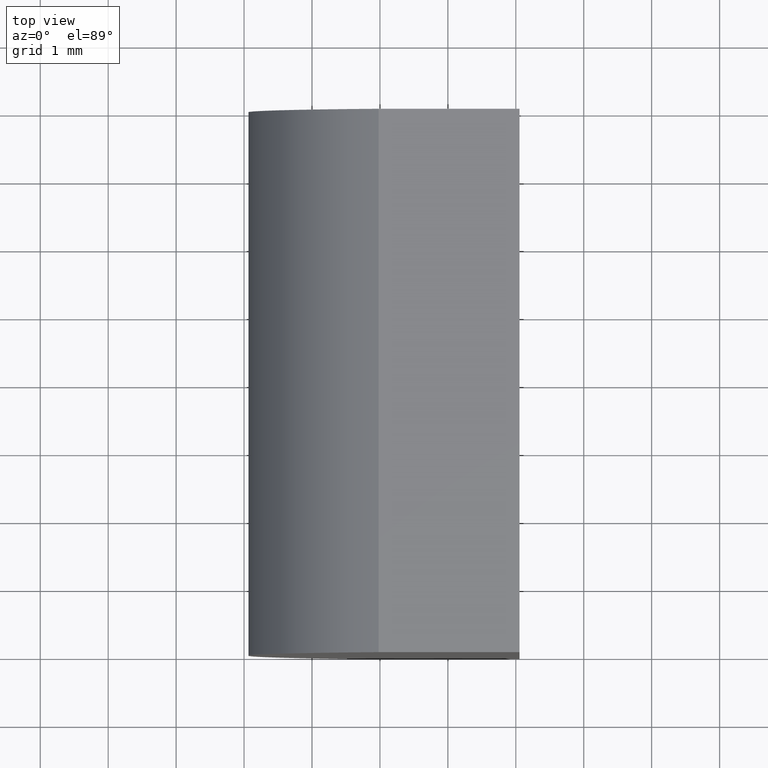
[diagram: clean part render]
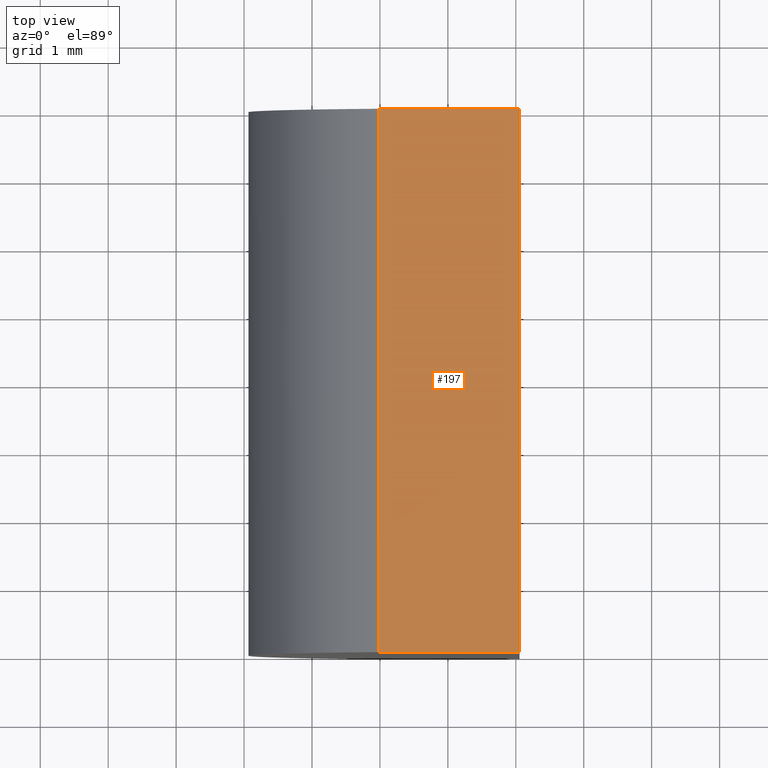
[diagram: same view with one face highlighted and labeled with its STEP entity id]
A machine part, top view. The second image highlights one B-rep face of the part: STEP entity #197.
In plain terms, the highlighted planar face has unit normal (-0, 0, -1).
Its self-contained STEP definition (entity closure, byte-faithful):
#6 = CARTESIAN_POINT ( 'NONE',  ( 5.055204334851266500, 0.0000000000000000000, 3.000000000000000000 ) ) ;
#15 = CARTESIAN_POINT ( 'NONE',  ( 2.980431626364513400, 8.000000000000000000, 3.000000000000000400 ) ) ;
#28 = CARTESIAN_POINT ( 'NONE',  ( 2.980431626364513400, 8.000000000000000000, 3.000000000000000400 ) ) ;
#31 = CARTESIAN_POINT ( 'NONE',  ( 2.980431626364513400, 8.000000000000000000, 3.000000000000000400 ) ) ;
#40 = EDGE_CURVE ( 'NONE', #90, #71, #43, .T. ) ;
#43 = LINE ( 'NONE', #31, #91 ) ;
#45 = CARTESIAN_POINT ( 'NONE',  ( 5.055204334851266500, 8.000000000000000000, 3.000000000000000000 ) ) ;
#50 = PLANE ( 'NONE',  #166 ) ;
#53 = LINE ( 'NONE', #64, #199 ) ;
#64 = CARTESIAN_POINT ( 'NONE',  ( 5.055204334851266500, 8.000000000000000000, 3.000000000000000000 ) ) ;
#68 = DIRECTION ( 'NONE',  ( -2.090257247072183900E-016, 0.0000000000000000000, -1.000000000000000000 ) ) ;
#71 = VERTEX_POINT ( 'NONE', #114 ) ;
#72 = FACE_OUTER_BOUND ( 'NONE', #188, .T. ) ;
#76 = ORIENTED_EDGE ( 'NONE', *, *, #84, .T. ) ;
#82 = DIRECTION ( 'NONE',  ( -0.0000000000000000000, -1.000000000000000000, -0.0000000000000000000 ) ) ;
#83 = LINE ( 'NONE', #160, #178 ) ;
#84 = EDGE_CURVE ( 'NONE', #71, #185, #83, .T. ) ;
#90 = VERTEX_POINT ( 'NONE', #136 ) ;
#91 = VECTOR ( 'NONE', #82, 1000.000000000000000 ) ;
#103 = DIRECTION ( 'NONE',  ( -0.0000000000000000000, -1.000000000000000000, -0.0000000000000000000 ) ) ;
#114 = CARTESIAN_POINT ( 'NONE',  ( 2.980431626364513400, 0.0000000000000000000, 3.000000000000000400 ) ) ;
#115 = VERTEX_POINT ( 'NONE', #45 ) ;
#122 = EDGE_CURVE ( 'NONE', #90, #115, #169, .T. ) ;
#123 = ORIENTED_EDGE ( 'NONE', *, *, #122, .F. ) ;
#136 = CARTESIAN_POINT ( 'NONE',  ( 2.980431626364513400, 8.000000000000000000, 3.000000000000000400 ) ) ;
#151 = DIRECTION ( 'NONE',  ( 1.000000000000000000, 0.0000000000000000000, -2.090257247072183900E-016 ) ) ;
#160 = CARTESIAN_POINT ( 'NONE',  ( 2.980431626364513400, 0.0000000000000000000, 3.000000000000000400 ) ) ;
#166 = AXIS2_PLACEMENT_3D ( 'NONE', #15, #68, #191 ) ;
#168 = ORIENTED_EDGE ( 'NONE', *, *, #180, .F. ) ;
#169 = LINE ( 'NONE', #28, #198 ) ;
#178 = VECTOR ( 'NONE', #151, 1000.000000000000000 ) ;
#180 = EDGE_CURVE ( 'NONE', #115, #185, #53, .T. ) ;
#181 = ORIENTED_EDGE ( 'NONE', *, *, #40, .T. ) ;
#185 = VERTEX_POINT ( 'NONE', #6 ) ;
#188 = EDGE_LOOP ( 'NONE', ( #76, #168, #123, #181 ) ) ;
#191 = DIRECTION ( 'NONE',  ( -1.000000000000000000, 0.0000000000000000000, 2.090257247072183900E-016 ) ) ;
#194 = DIRECTION ( 'NONE',  ( 1.000000000000000000, 0.0000000000000000000, -2.090257247072183900E-016 ) ) ;
#197 = ADVANCED_FACE ( 'NONE', ( #72 ), #50, .F. ) ;
#198 = VECTOR ( 'NONE', #194, 1000.000000000000000 ) ;
#199 = VECTOR ( 'NONE', #103, 1000.000000000000000 ) ;